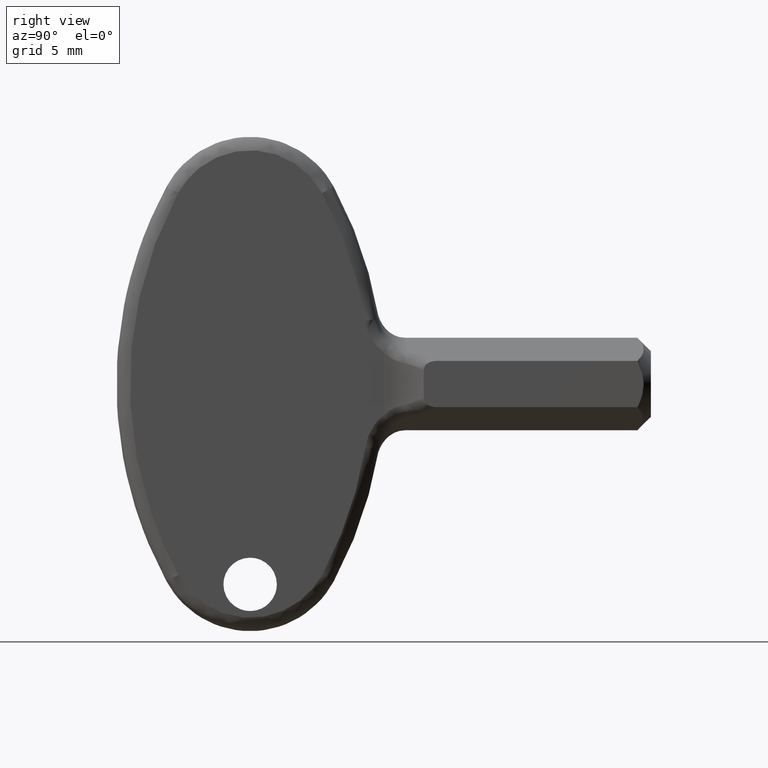
[diagram: clean part render]
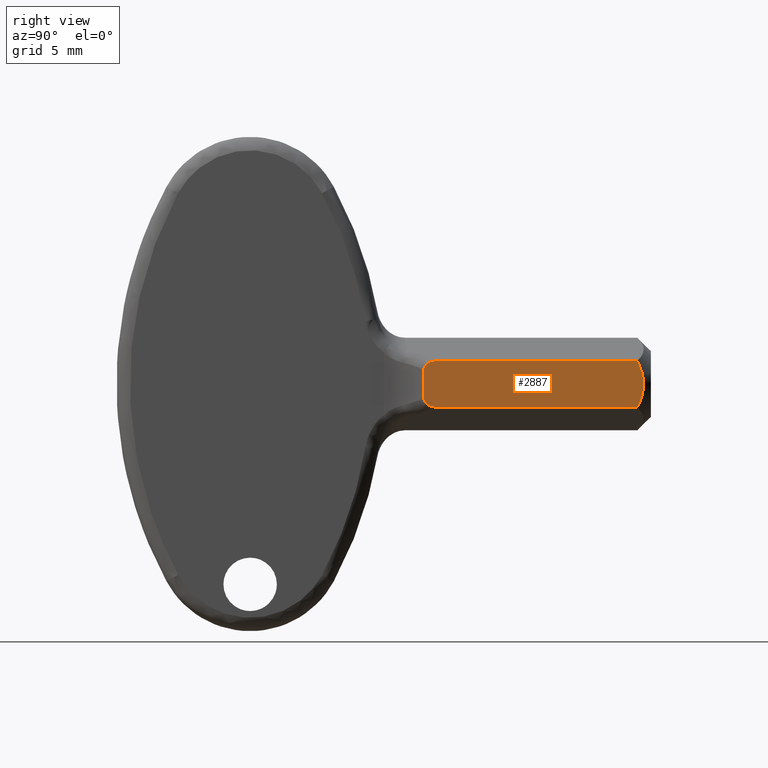
[diagram: same view with one face highlighted and labeled with its STEP entity id]
A machine part, right view. The second image highlights one B-rep face of the part: STEP entity #2887.
In plain terms, the highlighted face is a freeform B-spline surface patch.
Its self-contained STEP definition (entity closure, byte-faithful):
#319=CARTESIAN_POINT('',(3.0,-27.214783211632849,1.732000000000000));
#320=VERTEX_POINT('',#319);
#336=CARTESIAN_POINT('',(3.0,-27.214783211632849,-1.732000000000000));
#337=VERTEX_POINT('',#336);
#338=CARTESIAN_POINT('',(3.0,-27.214783211632849,1.732000000000002));
#339=CARTESIAN_POINT('',(3.0,-27.147796226140219,1.598023081446884));
#340=CARTESIAN_POINT('',(3.0,-27.085284034353030,1.461450700774132));
#341=CARTESIAN_POINT('',(3.0,-27.000586976190419,1.251330650880654));
#342=CARTESIAN_POINT('',(3.0,-26.973830893556759,1.180280950829476));
#343=CARTESIAN_POINT('',(2.999999999999999,-26.924062854563608,1.036688414793782));
#344=CARTESIAN_POINT('',(3.0,-26.901181110273860,0.964532690023095));
#345=CARTESIAN_POINT('',(2.999999999999999,-26.797796443903952,0.601774982061607));
#346=CARTESIAN_POINT('',(3.0,-26.750719231988398,0.305172276694254));
#347=CARTESIAN_POINT('',(2.999999999999999,-26.750703945016539,-0.076142731150342));
#348=CARTESIAN_POINT('',(3.0,-26.753624987984480,-0.152176694459742));
#349=CARTESIAN_POINT('',(3.0,-26.765016509217219,-0.302825231995668));
#350=CARTESIAN_POINT('',(3.0,-26.773485597737139,-0.377602260740410));
#351=CARTESIAN_POINT('',(3.0,-26.806669484556760,-0.600398844547661));
#352=CARTESIAN_POINT('',(3.0,-26.839166134332459,-0.746882865143816));
#353=CARTESIAN_POINT('',(3.0,-26.901027976103681,-0.964020642895903));
#354=CARTESIAN_POINT('',(3.0,-26.923832483836470,-1.035968970738440));
#355=CARTESIAN_POINT('',(2.999999999999999,-26.973397651901990,-1.179084988462207));
#356=CARTESIAN_POINT('',(3.0,-27.000218416237900,-1.250381558546962));
#357=CARTESIAN_POINT('',(3.0,-27.085082365954239,-1.461019326312582));
#358=CARTESIAN_POINT('',(3.000000000000001,-27.147704106223880,-1.597838837560724));
#359=CARTESIAN_POINT('',(3.0,-27.214783211632849,-1.732000000000000));
#360=B_SPLINE_CURVE_WITH_KNOTS('',3,(#338,#339,#340,#341,#342,#343,#344,#345,#346,#347,#348,#349,#350,#351,#352,#353,#354,#355,#356,#357,#358,#359),.UNSPECIFIED.,.F.,.U.,(4,2,2,2,2,2,2,2,2,2,4),(0.0,0.124999999999999,0.187499999999999,0.249999999999998,0.499999999999999,0.562499999999999,0.625000000000000,0.750000000000000,0.812500000000000,0.875000000000000,1.0),.UNSPECIFIED.);
#361=EDGE_CURVE('',#320,#337,#360,.T.);
#1857=CARTESIAN_POINT('',(3.0,-43.214806999999951,-1.039174596122460));
#1858=VERTEX_POINT('',#1857);
#1859=CARTESIAN_POINT('',(3.0,-42.246167560290203,-1.732000000000000));
#1860=VERTEX_POINT('',#1859);
#1861=CARTESIAN_POINT('',(3.0,-43.214807000000000,-1.039174596122414));
#1862=CARTESIAN_POINT('',(3.0,-43.214807000000008,-1.095146140128866));
#1863=CARTESIAN_POINT('',(3.0,-43.208007416826767,-1.149989578650195));
#1864=CARTESIAN_POINT('',(3.0,-43.185904043015128,-1.230279767337134));
#1865=CARTESIAN_POINT('',(3.0,-43.176442507301672,-1.256867239635008));
#1866=CARTESIAN_POINT('',(3.0,-43.154003802763491,-1.307583937837360));
#1867=CARTESIAN_POINT('',(3.0,-43.140998380836152,-1.331913757656652));
#1868=CARTESIAN_POINT('',(3.0,-43.096853672972678,-1.401949943244827));
#1869=CARTESIAN_POINT('',(3.0,-43.060088639561549,-1.444996346388113));
#1870=CARTESIAN_POINT('',(3.0,-42.998748688099589,-1.501152455791813));
#1871=CARTESIAN_POINT('',(3.0,-42.977193084094573,-1.518625055535288));
#1872=CARTESIAN_POINT('',(3.0,-42.932080259963357,-1.551321088942291));
#1873=CARTESIAN_POINT('',(3.000000000000001,-42.908540734353082,-1.566509796990914));
#1874=CARTESIAN_POINT('',(3.000000000000001,-42.836663376773060,-1.608201618673308));
#1875=CARTESIAN_POINT('',(3.0,-42.786602136951807,-1.631241212725405));
#1876=CARTESIAN_POINT('',(3.0,-42.683094782292642,-1.669809941972009));
#1877=CARTESIAN_POINT('',(3.0,-42.629313833859577,-1.685360840723338));
#1878=CARTESIAN_POINT('',(3.0,-42.467206307745400,-1.721408440788349));
#1879=CARTESIAN_POINT('',(3.0,-42.357378781633152,-1.732000000000046));
#1880=CARTESIAN_POINT('',(3.0,-42.246167560290203,-1.732000000000045));
#1881=B_SPLINE_CURVE_WITH_KNOTS('',3,(#1861,#1862,#1863,#1864,#1865,#1866,#1867,#1868,#1869,#1870,#1871,#1872,#1873,#1874,#1875,#1876,#1877,#1878,#1879,#1880),.UNSPECIFIED.,.F.,.U.,(4,2,2,2,2,2,2,2,2,4),(0.0,0.125000000000003,0.187500000000007,0.250000000000011,0.375000000000009,0.437500000000008,0.500000000000007,0.625000000000006,0.750000000000004,1.0),.UNSPECIFIED.);
#1882=EDGE_CURVE('',#1858,#1860,#1881,.T.);
#2443=CARTESIAN_POINT('',(3.0,-42.246167560290097,1.732000000000000));
#2444=VERTEX_POINT('',#2443);
#2445=CARTESIAN_POINT('',(3.0,-43.214806999999951,1.039174596122460));
#2446=VERTEX_POINT('',#2445);
#2447=CARTESIAN_POINT('',(3.000000000000050,-42.246167560290147,1.732000000000000));
#2448=CARTESIAN_POINT('',(3.000000000000050,-42.357354642979487,1.731999999999998));
#2449=CARTESIAN_POINT('',(3.0,-42.466721937117903,1.721390694167345));
#2450=CARTESIAN_POINT('',(3.0,-42.627405770477409,1.685846610307956));
#2451=CARTESIAN_POINT('',(3.0,-42.680398875328947,1.670686153320557));
#2452=CARTESIAN_POINT('',(3.0,-42.784946966307380,1.631981055718847));
#2453=CARTESIAN_POINT('',(2.999999999999999,-42.835603444090637,1.608728963317567));
#2454=CARTESIAN_POINT('',(3.0,-42.907534991475742,1.567135512575949));
#2455=CARTESIAN_POINT('',(3.0,-42.930882959444610,1.552125192663679));
#2456=CARTESIAN_POINT('',(3.0,-42.976126091894493,1.519458912857530));
#2457=CARTESIAN_POINT('',(3.0,-42.997950844901297,1.501825744599173));
#2458=CARTESIAN_POINT('',(3.0,-43.038921907441548,1.464429325742114));
#2459=CARTESIAN_POINT('',(3.0,-43.058194521012631,1.444580442707079));
#2460=CARTESIAN_POINT('',(3.0,-43.094061898608771,1.402342248051342));
#2461=CARTESIAN_POINT('',(3.0,-43.110751978351352,1.379800214290651));
#2462=CARTESIAN_POINT('',(3.0,-43.155613815755061,1.308920236914414));
#2463=CARTESIAN_POINT('',(3.0,-43.177981005606313,1.258506372245458));
#2464=CARTESIAN_POINT('',(3.0,-43.200318388792503,1.178185684250215));
#2465=CARTESIAN_POINT('',(3.000000000000001,-43.205877816109982,1.150511450086418));
#2466=CARTESIAN_POINT('',(3.0,-43.213089990919357,1.095120935665055));
#2467=CARTESIAN_POINT('',(3.0,-43.214806999999936,1.067234601926277));
#2468=CARTESIAN_POINT('',(3.0,-43.214806999999951,1.039174596122412));
#2469=B_SPLINE_CURVE_WITH_KNOTS('',3,(#2447,#2448,#2449,#2450,#2451,#2452,#2453,#2454,#2455,#2456,#2457,#2458,#2459,#2460,#2461,#2462,#2463,#2464,#2465,#2466,#2467,#2468),.UNSPECIFIED.,.F.,.U.,(4,2,2,2,2,2,2,2,2,2,4),(0.0,0.250000000000026,0.375000000000031,0.500000000000037,0.562500000000033,0.625000000000028,0.687500000000024,0.750000000000020,0.875000000000012,0.937500000000006,1.0),.UNSPECIFIED.);
#2470=EDGE_CURVE('',#2444,#2446,#2469,.T.);
#2834=CARTESIAN_POINT('',(3.0,-43.214806999999951,-1.039174596122460));
#2835=CARTESIAN_POINT('',(3.0,-43.214806999999951,1.039174596122460));
#2836=QUASI_UNIFORM_CURVE('',1,(#2834,#2835),.UNSPECIFIED.,.F.,.U.);
#2837=EDGE_CURVE('',#1858,#2446,#2836,.T.);
#2866=CARTESIAN_POINT('',(3.0,-44.037187313287582,1.905026793286096));
#2867=CARTESIAN_POINT('',(3.0,-44.037187313287582,-1.905026886197816));
#2868=CARTESIAN_POINT('',(3.0,-25.928326097944371,1.905026793286096));
#2869=CARTESIAN_POINT('',(3.0,-25.928326097944371,-1.905026886197816));
#2870=B_SPLINE_SURFACE_WITH_KNOTS('',1,1,((#2866,#2868),(#2867,#2869)),.UNSPECIFIED.,.F.,.F.,.U.,(2,2),(2,2),(0.0,3.810053679483912),(0.0,18.108861215343211),.UNSPECIFIED.);
#2871=ORIENTED_EDGE('',*,*,#2837,.F.);
#2872=ORIENTED_EDGE('',*,*,#1882,.T.);
#2873=CARTESIAN_POINT('',(3.0,-42.246167560290203,-1.732000000000000));
#2874=CARTESIAN_POINT('',(3.0,-27.214783211632849,-1.732000000000000));
#2875=QUASI_UNIFORM_CURVE('',1,(#2873,#2874),.UNSPECIFIED.,.F.,.U.);
#2876=EDGE_CURVE('',#1860,#337,#2875,.T.);
#2877=ORIENTED_EDGE('',*,*,#2876,.T.);
#2878=ORIENTED_EDGE('',*,*,#361,.F.);
#2879=CARTESIAN_POINT('',(3.0,-42.246167560290097,1.732000000000000));
#2880=CARTESIAN_POINT('',(3.0,-27.214783211632849,1.732000000000000));
#2881=QUASI_UNIFORM_CURVE('',1,(#2879,#2880),.UNSPECIFIED.,.F.,.U.);
#2882=EDGE_CURVE('',#2444,#320,#2881,.T.);
#2883=ORIENTED_EDGE('',*,*,#2882,.F.);
#2884=ORIENTED_EDGE('',*,*,#2470,.T.);
#2885=EDGE_LOOP('',(#2871,#2872,#2877,#2878,#2883,#2884));
#2886=FACE_OUTER_BOUND('',#2885,.T.);
#2887=ADVANCED_FACE('',(#2886),#2870,.T.);